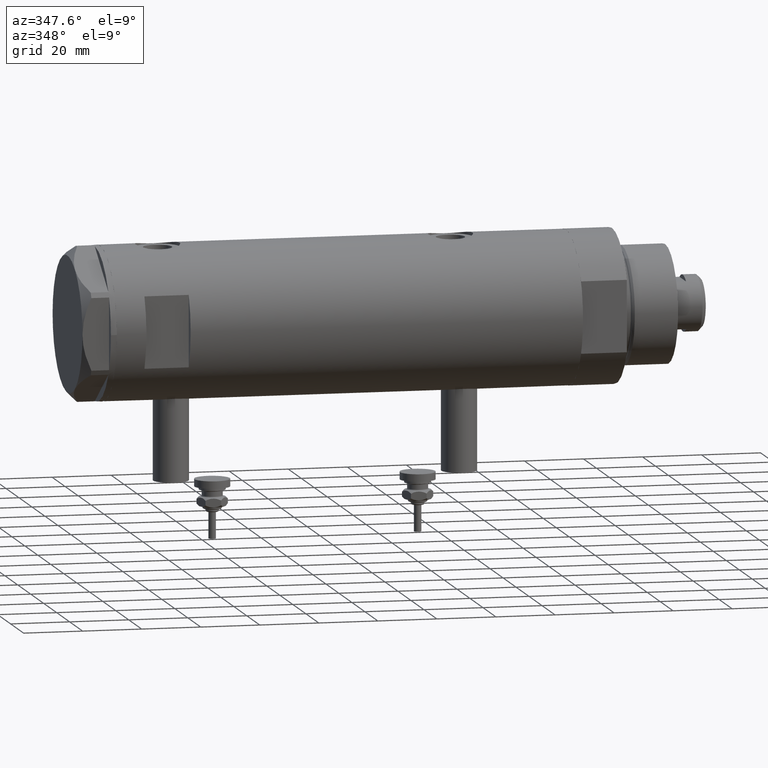
[diagram: clean part render]
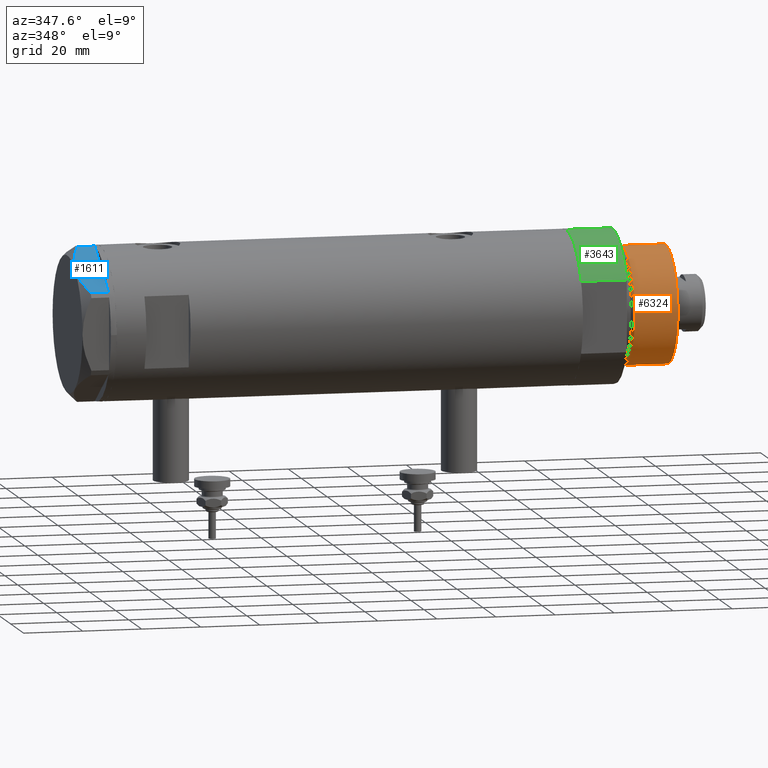
[diagram: same view with three faces highlighted in distinct colors, each labeled with its STEP entity id]
A machine part, auxiliary view with three faces highlighted in distinct colors.
Their STEP definitions:

[orange] entity #6324 — the highlighted cylindrical surface (partial cylindrical patch) has radius 20 mm, axis along (-1, -0, 0).
#13 = ORIENTED_EDGE ( 'NONE', *, *, #6106, .F. ) ;
#116 = DIRECTION ( 'NONE',  ( -0.000000000000000000, -0.000000000000000000, -1.000000000000000000 ) ) ;
#249 = LINE ( 'NONE', #6097, #3762 ) ;
#424 = EDGE_CURVE ( 'NONE', #4240, #4104, #1048, .T. ) ;
#543 = AXIS2_PLACEMENT_3D ( 'NONE', #2110, #5121, #5994 ) ;
#719 = EDGE_CURVE ( 'NONE', #4506, #4240, #249, .T. ) ;
#1048 = CIRCLE ( 'NONE', #4082, 19.99999999999999645 ) ;
#1061 = ORIENTED_EDGE ( 'NONE', *, *, #719, .T. ) ;
#1332 = FACE_OUTER_BOUND ( 'NONE', #5983, .T. ) ;
#1482 = DIRECTION ( 'NONE',  ( -0.000000000000000000, -0.000000000000000000, 1.000000000000000000 ) ) ;
#1529 = VERTEX_POINT ( 'NONE', #2519 ) ;
#1681 = CIRCLE ( 'NONE', #543, 19.99999999999999645 ) ;
#1800 = LINE ( 'NONE', #5737, #2037 ) ;
#1824 = DIRECTION ( 'NONE',  ( -1.000000000000000000, 0.000000000000000000, 0.000000000000000000 ) ) ;
#2037 = VECTOR ( 'NONE', #4170, 1000.000000000000000 ) ;
#2110 = CARTESIAN_POINT ( 'NONE',  ( 0.000000000000000000, 0.000000000000000000, 33.50000000000000000 ) ) ;
#2298 = CYLINDRICAL_SURFACE ( 'NONE', #4705, 19.99999999999999645 ) ;
#2391 = CARTESIAN_POINT ( 'NONE',  ( 0.000000000000000000, 0.000000000000000000, 18.87384048104053846 ) ) ;
#2519 = CARTESIAN_POINT ( 'NONE',  ( 19.99999999999999645, 2.449293598294706119E-15, 33.50000000000000000 ) ) ;
#2626 = CARTESIAN_POINT ( 'NONE',  ( -19.99999999999999645, 0.000000000000000000, 33.50000000000000000 ) ) ;
#2634 = EDGE_CURVE ( 'NONE', #1529, #4104, #1800, .T. ) ;
#3762 = VECTOR ( 'NONE', #116, 1000.000000000000000 ) ;
#3899 = CARTESIAN_POINT ( 'NONE',  ( -19.99999999999999645, 0.000000000000000000, 18.87384048104053846 ) ) ;
#4082 = AXIS2_PLACEMENT_3D ( 'NONE', #2391, #1482, #4390 ) ;
#4104 = VERTEX_POINT ( 'NONE', #4269 ) ;
#4170 = DIRECTION ( 'NONE',  ( -0.000000000000000000, -0.000000000000000000, -1.000000000000000000 ) ) ;
#4233 = CARTESIAN_POINT ( 'NONE',  ( 0.000000000000000000, 0.000000000000000000, 33.50000000000000000 ) ) ;
#4240 = VERTEX_POINT ( 'NONE', #3899 ) ;
#4269 = CARTESIAN_POINT ( 'NONE',  ( 19.99999999999999645, 2.449293598294706119E-15, 18.87384048104053846 ) ) ;
#4390 = DIRECTION ( 'NONE',  ( 1.000000000000000000, 0.000000000000000000, 0.000000000000000000 ) ) ;
#4506 = VERTEX_POINT ( 'NONE', #2626 ) ;
#4705 = AXIS2_PLACEMENT_3D ( 'NONE', #4233, #6189, #1824 ) ;
#5019 = ORIENTED_EDGE ( 'NONE', *, *, #424, .T. ) ;
#5121 = DIRECTION ( 'NONE',  ( 0.000000000000000000, 0.000000000000000000, 1.000000000000000000 ) ) ;
#5462 = ORIENTED_EDGE ( 'NONE', *, *, #2634, .F. ) ;
#5737 = CARTESIAN_POINT ( 'NONE',  ( 19.99999999999999645, 2.449293598294706119E-15, 33.50000000000000000 ) ) ;
#5983 = EDGE_LOOP ( 'NONE', ( #5462, #13, #1061, #5019 ) ) ;
#5994 = DIRECTION ( 'NONE',  ( 1.000000000000000000, 0.000000000000000000, 0.000000000000000000 ) ) ;
#6097 = CARTESIAN_POINT ( 'NONE',  ( -19.99999999999999645, 0.000000000000000000, 33.50000000000000000 ) ) ;
#6106 = EDGE_CURVE ( 'NONE', #4506, #1529, #1681, .T. ) ;
#6189 = DIRECTION ( 'NONE',  ( -0.000000000000000000, -0.000000000000000000, -1.000000000000000000 ) ) ;
#6324 = ADVANCED_FACE ( 'NONE', ( #1332 ), #2298, .T. ) ;

[blue] entity #1611 — the highlighted planar face has unit normal (-0, 0.5, -0.866).
#174 = VERTEX_POINT ( 'NONE', #4589 ) ;
#311 = ORIENTED_EDGE ( 'NONE', *, *, #1302, .T. ) ;
#359 = EDGE_CURVE ( 'NONE', #613, #4678, #3874, .T. ) ;
#397 = LINE ( 'NONE', #860, #451 ) ;
#400 = CARTESIAN_POINT ( 'NONE',  ( -11.49999999999990585, -19.91858428704219364, 9.000000000000000000 ) ) ;
#451 = VECTOR ( 'NONE', #5851, 1000.000000000000000 ) ;
#528 = EDGE_CURVE ( 'NONE', #6051, #661, #5332, .T. ) ;
#531 = CARTESIAN_POINT ( 'NONE',  ( -13.34348161667001698, -18.85424967941148822, 8.907842277728438063 ) ) ;
#613 = VERTEX_POINT ( 'NONE', #5932 ) ;
#661 = VERTEX_POINT ( 'NONE', #5559 ) ;
#737 = ORIENTED_EDGE ( 'NONE', *, *, #359, .F. ) ;
#846 = CARTESIAN_POINT ( 'NONE',  ( -4.357207709417335373, -24.04247733877546267, 7.570552255230290406 ) ) ;
#860 = CARTESIAN_POINT ( 'NONE',  ( -22.99999999999990408, -13.27905619136147841, 0.000000000000000000 ) ) ;
#882 = CARTESIAN_POINT ( 'NONE',  ( -1.799196345398571983, -25.51934588838179607, 6.431317509510369845 ) ) ;
#913 = CARTESIAN_POINT ( 'NONE',  ( -0.9699484522404678843, -25.99811238272155123, 5.983800287808756835 ) ) ;
#1109 = FACE_OUTER_BOUND ( 'NONE', #3421, .T. ) ;
#1302 = EDGE_CURVE ( 'NONE', #1898, #3815, #5175, .T. ) ;
#1430 = CARTESIAN_POINT ( 'NONE',  ( -18.67981377008999644, -15.77331687414923778, 7.629374868826104716 ) ) ;
#1611 = ADVANCED_FACE ( 'NONE', ( #1109 ), #5912, .F. ) ;
#1708 = CARTESIAN_POINT ( 'NONE',  ( -0.9699484522383977625, -25.99811238272274494, 9.000000000000000000 ) ) ;
#1830 = CARTESIAN_POINT ( 'NONE',  ( -11.49999999999990585, -19.91858428704219364, 9.000000000000000000 ) ) ;
#1867 = CARTESIAN_POINT ( 'NONE',  ( -5.671686373603866294, -23.28356272816335348, 8.040681765829727823 ) ) ;
#1897 = ORIENTED_EDGE ( 'NONE', *, *, #1917, .T. ) ;
#1898 = VERTEX_POINT ( 'NONE', #2881 ) ;
#1917 = EDGE_CURVE ( 'NONE', #661, #174, #397, .T. ) ;
#2004 = ORIENTED_EDGE ( 'NONE', *, *, #2486, .F. ) ;
#2149 = CARTESIAN_POINT ( 'NONE',  ( -22.99999999999990408, -13.27905619136147841, 0.000000000000000000 ) ) ;
#2293 = DIRECTION ( 'NONE',  ( -0.000000000000000000, 0.000000000000000000, -1.000000000000000000 ) ) ;
#2306 = CARTESIAN_POINT ( 'NONE',  ( -5.229981517799206614, -23.53858114556453529, 7.892128867758890998 ) ) ;
#2380 = AXIS2_PLACEMENT_3D ( 'NONE', #3016, #5885, #4938 ) ;
#2486 = EDGE_CURVE ( 'NONE', #1898, #613, #2821, .T. ) ;
#2818 = CARTESIAN_POINT ( 'NONE',  ( -22.03005154776146313, -13.83905619136139364, 5.983800287807550689 ) ) ;
#2821 = B_SPLINE_CURVE_WITH_KNOTS ( 'NONE', 3,
 ( #2818, #3413, #1430, #4871, #5362, #3350, #531, #3886, #3754, #400 ),
 .UNSPECIFIED., .F., .F.,
 ( 4, 2, 2, 2, 4 ),
 ( 0.001228959670438514989, 0.007497079744270818830, 0.01063113978118697227, 0.01219816979964504812, 0.01376519981810312397 ),
 .UNSPECIFIED. ) ;
#2881 = CARTESIAN_POINT ( 'NONE',  ( -22.03005154776146313, -13.83905619136139364, 5.983800287807550689 ) ) ;
#2908 = CARTESIAN_POINT ( 'NONE',  ( -22.99999999999990408, -13.27905619136147841, 0.000000000000000000 ) ) ;
#2963 = VECTOR ( 'NONE', #2293, 1000.000000000000000 ) ;
#3016 = CARTESIAN_POINT ( 'NONE',  ( -22.99999999999990408, -13.27905619136147841, 9.000000000000000000 ) ) ;
#3156 = CARTESIAN_POINT ( 'NONE',  ( -21.99999999999998224, -13.85640646055105485, 0.000000000000000000 ) ) ;
#3247 = CARTESIAN_POINT ( 'NONE',  ( -7.884645426990268824, -22.00591022298511490, 8.707651728477127762 ) ) ;
#3310 = CARTESIAN_POINT ( 'NONE',  ( -3.925137811031424562, -24.29193301091729396, 7.397272853992039821 ) ) ;
#3350 = CARTESIAN_POINT ( 'NONE',  ( -13.80210138309694301, -18.58946543380922378, 8.852712638955804181 ) ) ;
#3351 = ORIENTED_EDGE ( 'NONE', *, *, #4602, .T. ) ;
#3413 = CARTESIAN_POINT ( 'NONE',  ( -20.37350567916426058, -14.79546339452094017, 6.877782426143456362 ) ) ;
#3421 = EDGE_LOOP ( 'NONE', ( #2004, #311, #3351, #4343, #1897, #5153, #737 ) ) ;
#3550 = DIRECTION ( 'NONE',  ( 0.000000000000000000, 0.000000000000000000, 1.000000000000000000 ) ) ;
#3754 = CARTESIAN_POINT ( 'NONE',  ( -11.95865151389046588, -19.65378171203314395, 9.000000000000095923 ) ) ;
#3815 = VERTEX_POINT ( 'NONE', #6307 ) ;
#3871 = VECTOR ( 'NONE', #3550, 1000.000000000000000 ) ;
#3874 = B_SPLINE_CURVE_WITH_KNOTS ( 'NONE', 3,
 ( #1830, #5232, #3247, #1867, #2306, #846, #3310, #4244, #882, #913 ),
 .UNSPECIFIED., .F., .F.,
 ( 4, 2, 2, 2, 4 ),
 ( 0.01376519981810312397, 0.01998941321701459134, 0.02154546656674245428, 0.02310151991647032069, 0.02621362661592604310 ),
 .UNSPECIFIED. ) ;
#3886 = CARTESIAN_POINT ( 'NONE',  ( -12.41906678023023325, -19.38796083407287085, 8.981686407609506873 ) ) ;
#3976 = VECTOR ( 'NONE', #4451, 1000.000000000000000 ) ;
#4090 = DIRECTION ( 'NONE',  ( 0.8660254037844415942, -0.4999999999999950595, 0.000000000000000000 ) ) ;
#4244 = CARTESIAN_POINT ( 'NONE',  ( -2.640413878808339110, -25.03366871902064261, 6.844201024439214187 ) ) ;
#4262 = CARTESIAN_POINT ( 'NONE',  ( -0.9699484522404678843, -25.99811238272155123, 5.983800287808756835 ) ) ;
#4343 = ORIENTED_EDGE ( 'NONE', *, *, #528, .T. ) ;
#4451 = DIRECTION ( 'NONE',  ( 0.8660254037844415942, -0.4999999999999950595, 0.000000000000000000 ) ) ;
#4589 = CARTESIAN_POINT ( 'NONE',  ( -0.9699484522383943208, -25.99811238272274494, 0.000000000000000000 ) ) ;
#4602 = EDGE_CURVE ( 'NONE', #3815, #6051, #6111, .T. ) ;
#4669 = LINE ( 'NONE', #1708, #3871 ) ;
#4678 = VERTEX_POINT ( 'NONE', #4262 ) ;
#4871 = CARTESIAN_POINT ( 'NONE',  ( -16.05322244309625290, -17.28978008384019915, 8.426899937603781865 ) ) ;
#4938 = DIRECTION ( 'NONE',  ( -0.8660254037844414832, 0.4999999999999950040, 0.000000000000000000 ) ) ;
#5153 = ORIENTED_EDGE ( 'NONE', *, *, #5813, .T. ) ;
#5175 = LINE ( 'NONE', #5707, #2963 ) ;
#5232 = CARTESIAN_POINT ( 'NONE',  ( -9.678244919010385416, -20.97037507344893115, 9.000000000000088818 ) ) ;
#5332 = LINE ( 'NONE', #2908, #3976 ) ;
#5362 = CARTESIAN_POINT ( 'NONE',  ( -15.16323225988328538, -17.80361615569431777, 8.637313967156948991 ) ) ;
#5559 = CARTESIAN_POINT ( 'NONE',  ( -0.9999999999997406519, -25.98076211353317433, 0.000000000000000000 ) ) ;
#5707 = CARTESIAN_POINT ( 'NONE',  ( -22.03005154776132102, -13.83905619136147536, 9.000000000000000000 ) ) ;
#5813 = EDGE_CURVE ( 'NONE', #174, #4678, #4669, .T. ) ;
#5851 = DIRECTION ( 'NONE',  ( 0.8660254037844415942, -0.4999999999999950595, 0.000000000000000000 ) ) ;
#5885 = DIRECTION ( 'NONE',  ( 0.4999999999999950595, 0.8660254037844415942, -0.000000000000000000 ) ) ;
#5912 = PLANE ( 'NONE',  #2380 ) ;
#5932 = CARTESIAN_POINT ( 'NONE',  ( -11.49999999999990585, -19.91858428704219364, 9.000000000000000000 ) ) ;
#6021 = VECTOR ( 'NONE', #4090, 1000.000000000000000 ) ;
#6051 = VERTEX_POINT ( 'NONE', #3156 ) ;
#6111 = LINE ( 'NONE', #2149, #6021 ) ;
#6307 = CARTESIAN_POINT ( 'NONE',  ( -22.03005154776132102, -13.83905619136147536, 0.000000000000000000 ) ) ;

[green] entity #3643 — the highlighted cylindrical surface (partial cylindrical patch) has radius 26 mm, axis along (-1, -0, 0).
#22 = CARTESIAN_POINT ( 'NONE',  ( -12.12435565298215501, -22.99999999999999645, 0.000000000000000000 ) ) ;
#128 = FACE_OUTER_BOUND ( 'NONE', #478, .T. ) ;
#177 = DIRECTION ( 'NONE',  ( 1.000000000000000000, 0.000000000000000000, 0.000000000000000000 ) ) ;
#215 = ORIENTED_EDGE ( 'NONE', *, *, #2910, .T. ) ;
#410 = AXIS2_PLACEMENT_3D ( 'NONE', #2308, #2244, #4720 ) ;
#478 = EDGE_LOOP ( 'NONE', ( #2427, #3859, #3434, #215 ) ) ;
#1422 = CARTESIAN_POINT ( 'NONE',  ( 0.000000000000000000, 0.000000000000000000, 15.50000000000000000 ) ) ;
#1435 = VECTOR ( 'NONE', #4149, 1000.000000000000000 ) ;
#1504 = CARTESIAN_POINT ( 'NONE',  ( 0.000000000000000000, 0.000000000000000000, 0.000000000000000000 ) ) ;
#1675 = CIRCLE ( 'NONE', #1969, 26.00000000000000355 ) ;
#1790 = VERTEX_POINT ( 'NONE', #22 ) ;
#1969 = AXIS2_PLACEMENT_3D ( 'NONE', #1504, #3423, #5372 ) ;
#2244 = DIRECTION ( 'NONE',  ( -0.000000000000000000, -0.000000000000000000, -1.000000000000000000 ) ) ;
#2280 = DIRECTION ( 'NONE',  ( 0.000000000000000000, 0.000000000000000000, 1.000000000000000000 ) ) ;
#2308 = CARTESIAN_POINT ( 'NONE',  ( 0.000000000000000000, 0.000000000000000000, 15.50000000000000000 ) ) ;
#2427 = ORIENTED_EDGE ( 'NONE', *, *, #3722, .F. ) ;
#2605 = CARTESIAN_POINT ( 'NONE',  ( -26.00000000000000355, 0.000000000000000000, 0.000000000000000000 ) ) ;
#2642 = AXIS2_PLACEMENT_3D ( 'NONE', #1422, #2280, #177 ) ;
#2649 = DIRECTION ( 'NONE',  ( -0.000000000000000000, -0.000000000000000000, -1.000000000000000000 ) ) ;
#2711 = CARTESIAN_POINT ( 'NONE',  ( -12.12435565298215323, -22.99999999999999645, 15.50000000000000000 ) ) ;
#2848 = CIRCLE ( 'NONE', #2642, 26.00000000000000355 ) ;
#2893 = VERTEX_POINT ( 'NONE', #2605 ) ;
#2910 = EDGE_CURVE ( 'NONE', #1790, #5330, #4622, .T. ) ;
#3423 = DIRECTION ( 'NONE',  ( 0.000000000000000000, 0.000000000000000000, 1.000000000000000000 ) ) ;
#3434 = ORIENTED_EDGE ( 'NONE', *, *, #5377, .T. ) ;
#3599 = LINE ( 'NONE', #3661, #4687 ) ;
#3643 = ADVANCED_FACE ( 'NONE', ( #128 ), #4992, .T. ) ;
#3661 = CARTESIAN_POINT ( 'NONE',  ( -26.00000000000000355, 0.000000000000000000, 15.50000000000000000 ) ) ;
#3722 = EDGE_CURVE ( 'NONE', #4140, #5330, #2848, .T. ) ;
#3859 = ORIENTED_EDGE ( 'NONE', *, *, #4639, .T. ) ;
#4118 = CARTESIAN_POINT ( 'NONE',  ( -12.12435565298215145, -22.99999999999999645, 0.000000000000000000 ) ) ;
#4140 = VERTEX_POINT ( 'NONE', #6230 ) ;
#4149 = DIRECTION ( 'NONE',  ( -0.000000000000000000, -0.000000000000000000, 1.000000000000000000 ) ) ;
#4622 = LINE ( 'NONE', #4118, #1435 ) ;
#4639 = EDGE_CURVE ( 'NONE', #4140, #2893, #3599, .T. ) ;
#4687 = VECTOR ( 'NONE', #2649, 1000.000000000000000 ) ;
#4720 = DIRECTION ( 'NONE',  ( -1.000000000000000000, 0.000000000000000000, 0.000000000000000000 ) ) ;
#4992 = CYLINDRICAL_SURFACE ( 'NONE', #410, 26.00000000000000355 ) ;
#5330 = VERTEX_POINT ( 'NONE', #2711 ) ;
#5372 = DIRECTION ( 'NONE',  ( 1.000000000000000000, 0.000000000000000000, 0.000000000000000000 ) ) ;
#5377 = EDGE_CURVE ( 'NONE', #2893, #1790, #1675, .T. ) ;
#6230 = CARTESIAN_POINT ( 'NONE',  ( -26.00000000000000355, 0.000000000000000000, 15.50000000000000000 ) ) ;